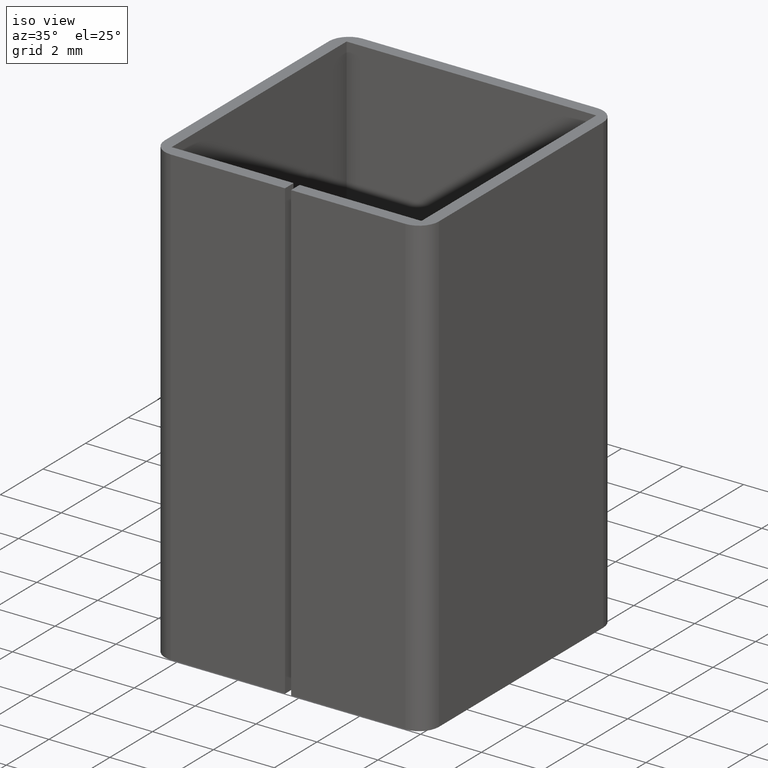
[diagram: clean part render]
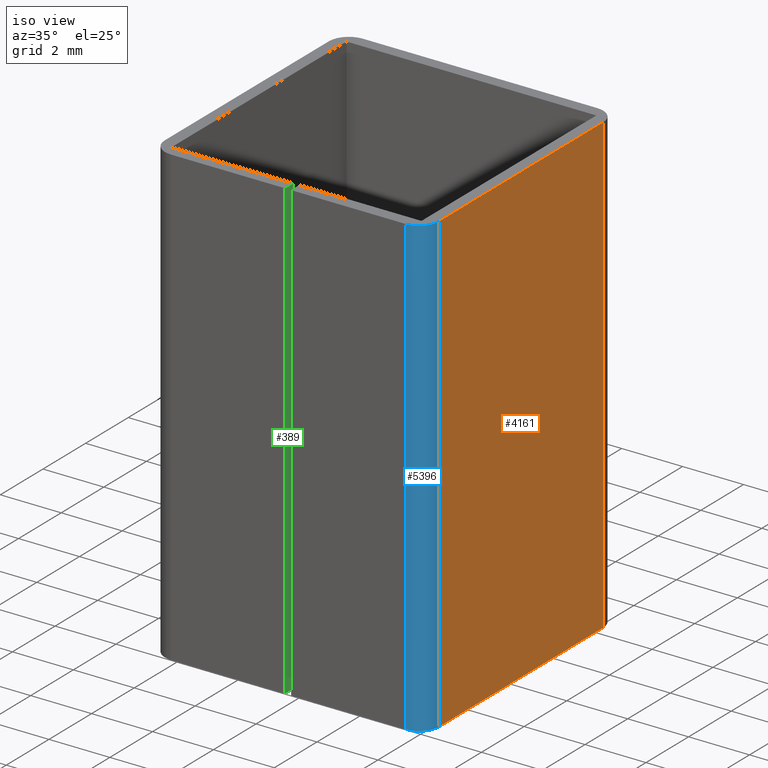
[diagram: same view with three faces highlighted in distinct colors, each labeled with its STEP entity id]
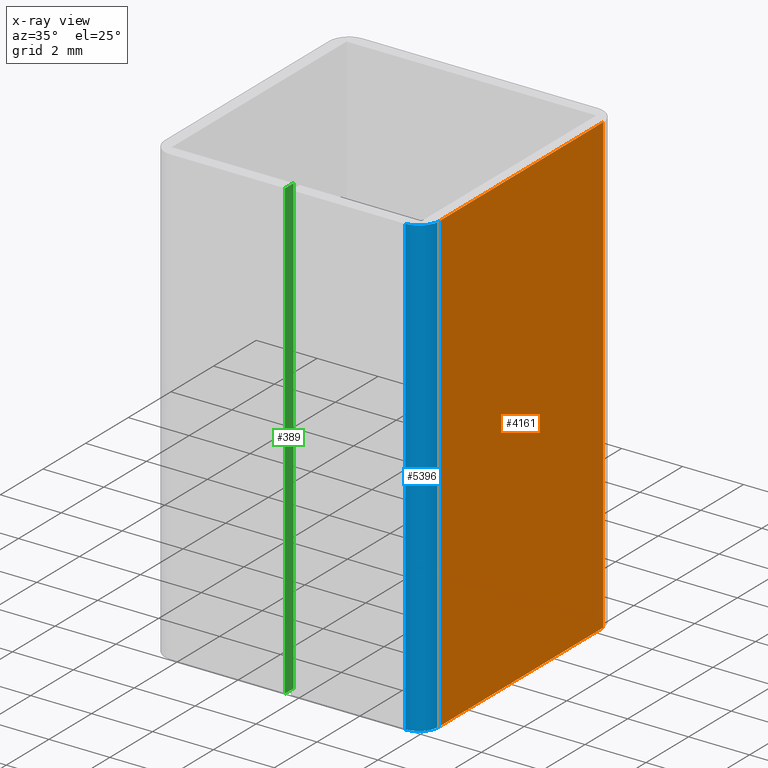
[diagram: x-ray of the same camera — body ghosted, the three highlighted faces saturated]
A machine part, iso view with three faces highlighted in distinct colors.
The next image is the same camera in x-ray (body ghosted, the three faces saturated) — at least one of them is partly hidden behind the body in this view.
Their STEP definitions:

[orange] entity #4161 — the highlighted planar face has unit normal (1, 0, -0).
#281 = ORIENTED_EDGE ( 'NONE', *, *, #1211, .T. ) ;
#441 = CARTESIAN_POINT ( 'NONE',  ( 4.500000000000001776, -3.849999999999999201, -7.500000000000000000 ) ) ;
#661 = CARTESIAN_POINT ( 'NONE',  ( 4.500000000000001776, 3.850000000000000533, -7.500000000000000000 ) ) ;
#1211 = EDGE_CURVE ( 'NONE', #4834, #4030, #7613, .T. ) ;
#1398 = CARTESIAN_POINT ( 'NONE',  ( 4.500000000000001776, 4.500000000000000888, 7.500000000000000000 ) ) ;
#1910 = EDGE_CURVE ( 'NONE', #7174, #6696, #3189, .T. ) ;
#1938 = ORIENTED_EDGE ( 'NONE', *, *, #3381, .F. ) ;
#2043 = PLANE ( 'NONE',  #9818 ) ;
#3189 = LINE ( 'NONE', #5998, #9656 ) ;
#3342 = VECTOR ( 'NONE', #5291, 1000.000000000000000 ) ;
#3381 = EDGE_CURVE ( 'NONE', #7174, #4030, #8376, .T. ) ;
#3684 = CARTESIAN_POINT ( 'NONE',  ( 4.500000000000001776, 4.500000000000000888, 7.500000000000000000 ) ) ;
#4030 = VERTEX_POINT ( 'NONE', #5965 ) ;
#4161 = ADVANCED_FACE ( 'NONE', ( #4607 ), #2043, .T. ) ;
#4498 = DIRECTION ( 'NONE',  ( 1.000000000000000000, 0.000000000000000000, -0.000000000000000000 ) ) ;
#4607 = FACE_OUTER_BOUND ( 'NONE', #10432, .T. ) ;
#4834 = VERTEX_POINT ( 'NONE', #7642 ) ;
#5291 = DIRECTION ( 'NONE',  ( -0.000000000000000000, 0.000000000000000000, -1.000000000000000000 ) ) ;
#5965 = CARTESIAN_POINT ( 'NONE',  ( 4.500000000000001776, -3.849999999999999201, -7.500000000000000000 ) ) ;
#5998 = CARTESIAN_POINT ( 'NONE',  ( 4.500000000000001776, 3.850000000000000533, 7.500000000000000000 ) ) ;
#6186 = DIRECTION ( 'NONE',  ( 0.000000000000000000, -0.000000000000000000, 1.000000000000000000 ) ) ;
#6514 = DIRECTION ( 'NONE',  ( 0.000000000000000000, -1.000000000000000000, 0.000000000000000000 ) ) ;
#6696 = VERTEX_POINT ( 'NONE', #6951 ) ;
#6786 = EDGE_CURVE ( 'NONE', #6696, #4834, #8538, .T. ) ;
#6951 = CARTESIAN_POINT ( 'NONE',  ( 4.500000000000001776, 3.850000000000000533, 7.500000000000000000 ) ) ;
#7174 = VERTEX_POINT ( 'NONE', #661 ) ;
#7613 = LINE ( 'NONE', #441, #3342 ) ;
#7620 = VECTOR ( 'NONE', #9416, 1000.000000000000000 ) ;
#7642 = CARTESIAN_POINT ( 'NONE',  ( 4.500000000000001776, -3.849999999999999201, 7.500000000000000000 ) ) ;
#7647 = ORIENTED_EDGE ( 'NONE', *, *, #1910, .T. ) ;
#8376 = LINE ( 'NONE', #8597, #7620 ) ;
#8538 = LINE ( 'NONE', #1398, #9179 ) ;
#8597 = CARTESIAN_POINT ( 'NONE',  ( 4.500000000000001776, 4.500000000000000888, -7.500000000000000000 ) ) ;
#8739 = DIRECTION ( 'NONE',  ( -0.000000000000000000, 0.000000000000000000, -1.000000000000000000 ) ) ;
#9179 = VECTOR ( 'NONE', #6514, 1000.000000000000000 ) ;
#9416 = DIRECTION ( 'NONE',  ( 0.000000000000000000, -1.000000000000000000, 0.000000000000000000 ) ) ;
#9656 = VECTOR ( 'NONE', #6186, 1000.000000000000000 ) ;
#9818 = AXIS2_PLACEMENT_3D ( 'NONE', #3684, #4498, #8739 ) ;
#9887 = ORIENTED_EDGE ( 'NONE', *, *, #6786, .T. ) ;
#10432 = EDGE_LOOP ( 'NONE', ( #9887, #281, #1938, #7647 ) ) ;

[blue] entity #5396 — the highlighted cylindrical surface (edge-blend (fillet) strip) has radius 0.65 mm, axis along (0, -0, 1).
#441 = CARTESIAN_POINT ( 'NONE',  ( 4.500000000000001776, -3.849999999999999201, -7.500000000000000000 ) ) ;
#617 = AXIS2_PLACEMENT_3D ( 'NONE', #1336, #2137, #5303 ) ;
#753 = AXIS2_PLACEMENT_3D ( 'NONE', #6644, #7352, #3355 ) ;
#1211 = EDGE_CURVE ( 'NONE', #4834, #4030, #7613, .T. ) ;
#1336 = CARTESIAN_POINT ( 'NONE',  ( 3.850000000000001421, -3.849999999999999201, 7.500000000000000000 ) ) ;
#2137 = DIRECTION ( 'NONE',  ( -0.000000000000000000, 0.000000000000000000, 1.000000000000000000 ) ) ;
#2940 = CIRCLE ( 'NONE', #4897, 0.6500000000000000222 ) ;
#2944 = CARTESIAN_POINT ( 'NONE',  ( 3.850000000000001421, -4.499999999999999112, -7.500000000000000000 ) ) ;
#3342 = VECTOR ( 'NONE', #5291, 1000.000000000000000 ) ;
#3355 = DIRECTION ( 'NONE',  ( 1.000000000000000000, 0.000000000000000000, 0.000000000000000000 ) ) ;
#3564 = EDGE_CURVE ( 'NONE', #4030, #6625, #2940, .T. ) ;
#4030 = VERTEX_POINT ( 'NONE', #5965 ) ;
#4062 = DIRECTION ( 'NONE',  ( 1.000000000000000000, 0.000000000000000000, 0.000000000000000000 ) ) ;
#4352 = VERTEX_POINT ( 'NONE', #8961 ) ;
#4480 = ORIENTED_EDGE ( 'NONE', *, *, #10307, .F. ) ;
#4675 = ORIENTED_EDGE ( 'NONE', *, *, #3564, .F. ) ;
#4733 = FACE_OUTER_BOUND ( 'NONE', #10406, .T. ) ;
#4834 = VERTEX_POINT ( 'NONE', #7642 ) ;
#4897 = AXIS2_PLACEMENT_3D ( 'NONE', #7509, #8878, #4062 ) ;
#4970 = ORIENTED_EDGE ( 'NONE', *, *, #5032, .F. ) ;
#5032 = EDGE_CURVE ( 'NONE', #4352, #4834, #5354, .T. ) ;
#5291 = DIRECTION ( 'NONE',  ( -0.000000000000000000, 0.000000000000000000, -1.000000000000000000 ) ) ;
#5303 = DIRECTION ( 'NONE',  ( 1.000000000000000000, 0.000000000000000000, 0.000000000000000000 ) ) ;
#5354 = CIRCLE ( 'NONE', #617, 0.6500000000000000222 ) ;
#5396 = ADVANCED_FACE ( 'NONE', ( #4733 ), #7470, .T. ) ;
#5965 = CARTESIAN_POINT ( 'NONE',  ( 4.500000000000001776, -3.849999999999999201, -7.500000000000000000 ) ) ;
#6564 = VECTOR ( 'NONE', #8117, 1000.000000000000000 ) ;
#6625 = VERTEX_POINT ( 'NONE', #2944 ) ;
#6644 = CARTESIAN_POINT ( 'NONE',  ( 3.850000000000001421, -3.849999999999999201, 7.500000000000000000 ) ) ;
#7352 = DIRECTION ( 'NONE',  ( 0.000000000000000000, -0.000000000000000000, 1.000000000000000000 ) ) ;
#7470 = CYLINDRICAL_SURFACE ( 'NONE', #753, 0.6500000000000000222 ) ;
#7509 = CARTESIAN_POINT ( 'NONE',  ( 3.850000000000001421, -3.849999999999999201, -7.500000000000000000 ) ) ;
#7613 = LINE ( 'NONE', #441, #3342 ) ;
#7642 = CARTESIAN_POINT ( 'NONE',  ( 4.500000000000001776, -3.849999999999999201, 7.500000000000000000 ) ) ;
#7924 = CARTESIAN_POINT ( 'NONE',  ( 3.850000000000001421, -4.499999999999999112, 7.500000000000000000 ) ) ;
#8117 = DIRECTION ( 'NONE',  ( -0.000000000000000000, -0.000000000000000000, 1.000000000000000000 ) ) ;
#8878 = DIRECTION ( 'NONE',  ( 0.000000000000000000, -0.000000000000000000, -1.000000000000000000 ) ) ;
#8961 = CARTESIAN_POINT ( 'NONE',  ( 3.850000000000001421, -4.499999999999999112, 7.500000000000000000 ) ) ;
#9728 = LINE ( 'NONE', #7924, #6564 ) ;
#9896 = ORIENTED_EDGE ( 'NONE', *, *, #1211, .F. ) ;
#10307 = EDGE_CURVE ( 'NONE', #6625, #4352, #9728, .T. ) ;
#10406 = EDGE_LOOP ( 'NONE', ( #4970, #4480, #4675, #9896 ) ) ;

[green] entity #389 — the highlighted planar face has unit normal (1, -0, 0).
#356 = VECTOR ( 'NONE', #2350, 1000.000000000000000 ) ;
#389 = ADVANCED_FACE ( 'NONE', ( #9353 ), #9121, .T. ) ;
#1111 = VECTOR ( 'NONE', #1301, 1000.000000000000000 ) ;
#1301 = DIRECTION ( 'NONE',  ( -5.421010862427520198E-16, -1.000000000000000000, 0.000000000000000000 ) ) ;
#1791 = ORIENTED_EDGE ( 'NONE', *, *, #8780, .F. ) ;
#1924 = DIRECTION ( 'NONE',  ( 1.000000000000000000, -5.421010862427520198E-16, 0.000000000000000000 ) ) ;
#1998 = ORIENTED_EDGE ( 'NONE', *, *, #4215, .T. ) ;
#2180 = DIRECTION ( 'NONE',  ( -5.421010862427520198E-16, -1.000000000000000000, 0.000000000000000000 ) ) ;
#2244 = VERTEX_POINT ( 'NONE', #4218 ) ;
#2278 = CARTESIAN_POINT ( 'NONE',  ( -0.1000000000000002554, -4.099999999999998757, -7.500000000000000000 ) ) ;
#2350 = DIRECTION ( 'NONE',  ( -0.000000000000000000, -0.000000000000000000, -1.000000000000000000 ) ) ;
#2599 = ORIENTED_EDGE ( 'NONE', *, *, #9452, .F. ) ;
#3319 = AXIS2_PLACEMENT_3D ( 'NONE', #4307, #1924, #8532 ) ;
#3418 = LINE ( 'NONE', #8288, #9218 ) ;
#3560 = VERTEX_POINT ( 'NONE', #6693 ) ;
#3587 = EDGE_LOOP ( 'NONE', ( #1791, #2599, #9506, #1998 ) ) ;
#3776 = CARTESIAN_POINT ( 'NONE',  ( -0.1000000000000002554, -4.099999999999998757, -7.500000000000000000 ) ) ;
#3834 = CARTESIAN_POINT ( 'NONE',  ( -0.1000000000000004774, -4.499999999999999112, 7.500000000000000000 ) ) ;
#4215 = EDGE_CURVE ( 'NONE', #5345, #2244, #4371, .T. ) ;
#4218 = CARTESIAN_POINT ( 'NONE',  ( -0.1000000000000004774, -4.499999999999999112, -7.500000000000000000 ) ) ;
#4307 = CARTESIAN_POINT ( 'NONE',  ( -0.1000000000000002554, -4.099999999999998757, 7.500000000000000000 ) ) ;
#4368 = VECTOR ( 'NONE', #2180, 1000.000000000000000 ) ;
#4371 = LINE ( 'NONE', #3834, #356 ) ;
#5202 = LINE ( 'NONE', #2278, #4368 ) ;
#5345 = VERTEX_POINT ( 'NONE', #9013 ) ;
#5423 = LINE ( 'NONE', #10176, #1111 ) ;
#6693 = CARTESIAN_POINT ( 'NONE',  ( -0.1000000000000002554, -4.099999999999998757, 7.500000000000000000 ) ) ;
#7066 = EDGE_CURVE ( 'NONE', #3560, #5345, #5423, .T. ) ;
#8288 = CARTESIAN_POINT ( 'NONE',  ( -0.1000000000000002554, -4.099999999999998757, 7.500000000000000000 ) ) ;
#8532 = DIRECTION ( 'NONE',  ( 5.421010862427520198E-16, 1.000000000000000000, 0.000000000000000000 ) ) ;
#8780 = EDGE_CURVE ( 'NONE', #10109, #2244, #5202, .T. ) ;
#9013 = CARTESIAN_POINT ( 'NONE',  ( -0.1000000000000004774, -4.499999999999999112, 7.500000000000000000 ) ) ;
#9121 = PLANE ( 'NONE',  #3319 ) ;
#9218 = VECTOR ( 'NONE', #9956, 1000.000000000000000 ) ;
#9353 = FACE_OUTER_BOUND ( 'NONE', #3587, .T. ) ;
#9452 = EDGE_CURVE ( 'NONE', #3560, #10109, #3418, .T. ) ;
#9506 = ORIENTED_EDGE ( 'NONE', *, *, #7066, .T. ) ;
#9956 = DIRECTION ( 'NONE',  ( -0.000000000000000000, -0.000000000000000000, -1.000000000000000000 ) ) ;
#10109 = VERTEX_POINT ( 'NONE', #3776 ) ;
#10176 = CARTESIAN_POINT ( 'NONE',  ( -0.1000000000000002554, -4.099999999999998757, 7.500000000000000000 ) ) ;